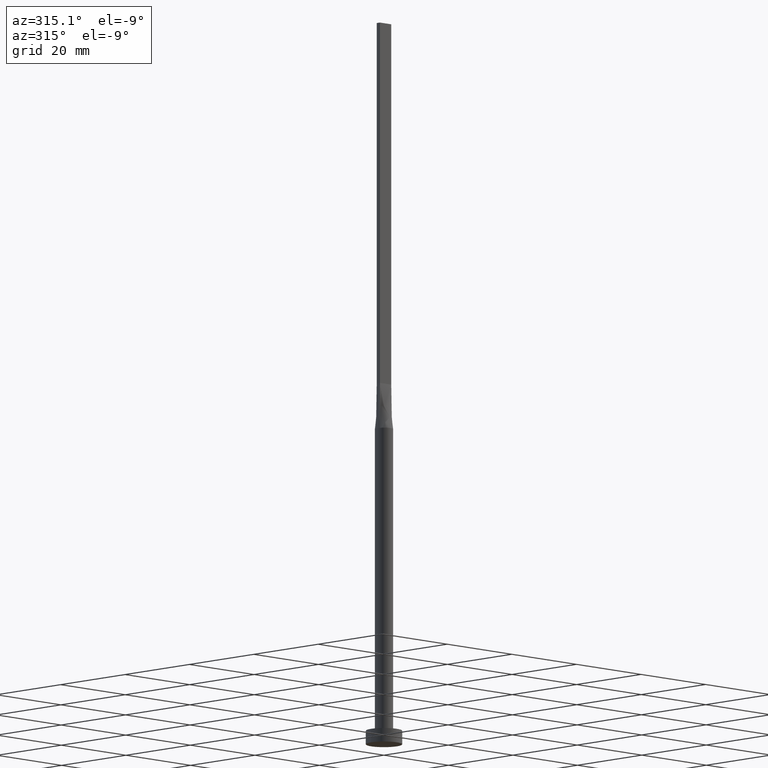
[diagram: clean part render]
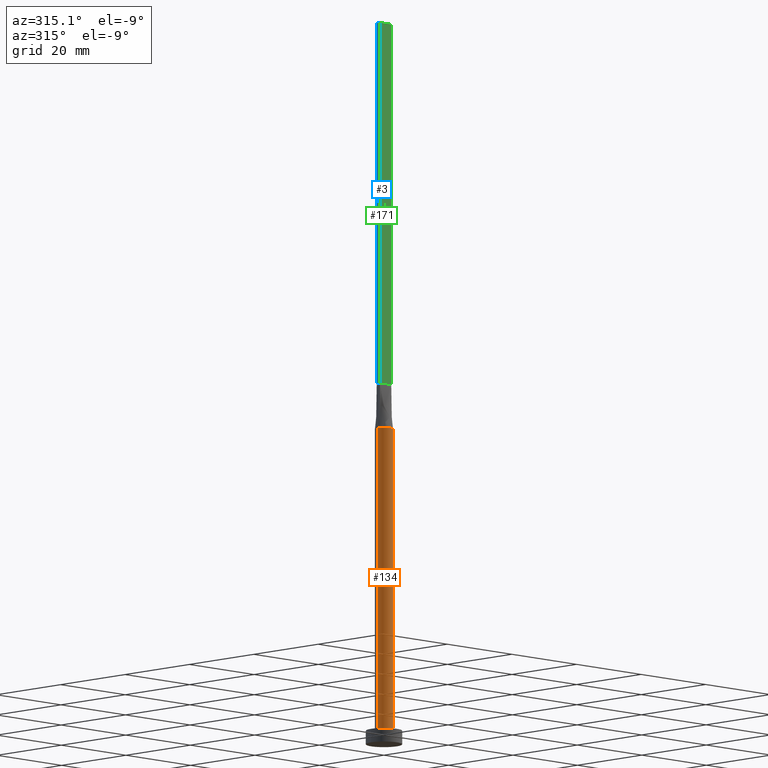
[diagram: same view with three faces highlighted in distinct colors, each labeled with its STEP entity id]
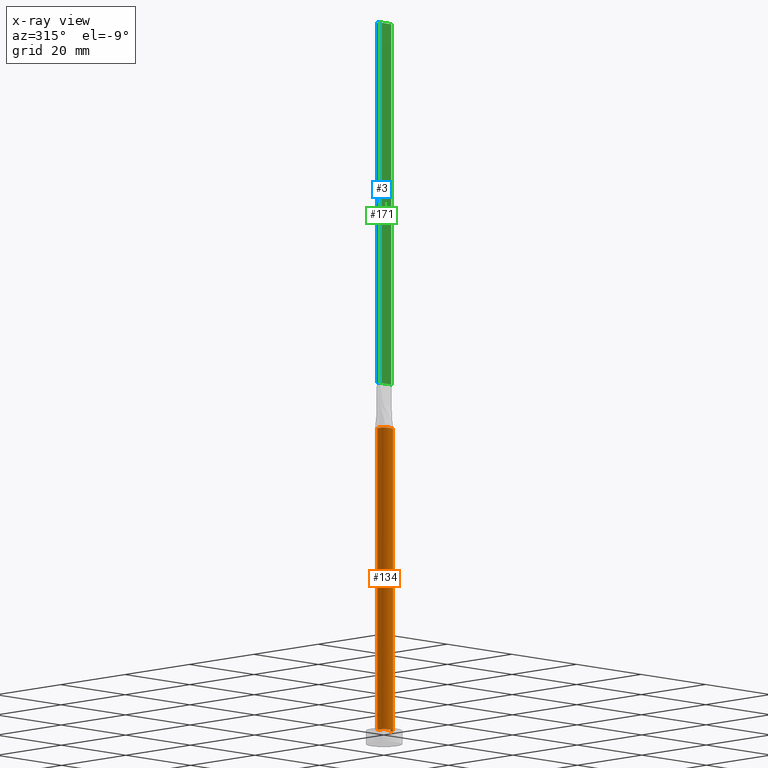
[diagram: x-ray of the same camera — body ghosted, the three highlighted faces saturated]
A machine part, auxiliary view with three faces highlighted in distinct colors.
The next image is the same camera in x-ray (body ghosted, the three faces saturated) — at least one of them is partly hidden behind the body in this view.
Their STEP definitions:

[orange] entity #134 — the highlighted cylindrical surface (edge-blend (fillet) strip) has radius 2 mm, axis along (-0, -0, -1).
#24 = CIRCLE ( 'NONE', #213, 2.000000000000000000 ) ;
#34 = VECTOR ( 'NONE', #475, 1000.000000000000000 ) ;
#50 = CIRCLE ( 'NONE', #455, 2.000000000000000000 ) ;
#57 = AXIS2_PLACEMENT_3D ( 'NONE', #157, #77, #301 ) ;
#71 = DIRECTION ( 'NONE',  ( 1.000000000000000000, 0.000000000000000000, 0.000000000000000000 ) ) ;
#72 = VERTEX_POINT ( 'NONE', #517 ) ;
#76 = ORIENTED_EDGE ( 'NONE', *, *, #358, .T. ) ;
#77 = DIRECTION ( 'NONE',  ( 0.000000000000000000, 0.000000000000000000, 1.000000000000000000 ) ) ;
#99 = DIRECTION ( 'NONE',  ( 1.000000000000000000, 0.000000000000000000, 0.000000000000000000 ) ) ;
#115 = VERTEX_POINT ( 'NONE', #166 ) ;
#123 = AXIS2_PLACEMENT_3D ( 'NONE', #214, #581, #170 ) ;
#134 = ADVANCED_FACE ( 'NONE', ( #351 ), #529, .T. ) ;
#146 = EDGE_LOOP ( 'NONE', ( #425, #200, #211, #393, #76, #478 ) ) ;
#156 = VERTEX_POINT ( 'NONE', #355 ) ;
#157 = CARTESIAN_POINT ( 'NONE',  ( 0.000000000000000000, 0.000000000000000000, 70.00000000000000000 ) ) ;
#163 = EDGE_CURVE ( 'NONE', #249, #433, #534, .T. ) ;
#166 = CARTESIAN_POINT ( 'NONE',  ( 1.923186205402444449, -0.5494823831763672173, 70.00000000000000000 ) ) ;
#170 = DIRECTION ( 'NONE',  ( -1.000000000000000000, 0.000000000000000000, 0.000000000000000000 ) ) ;
#176 = DIRECTION ( 'NONE',  ( -0.000000000000000000, -0.000000000000000000, -1.000000000000000000 ) ) ;
#192 = LINE ( 'NONE', #280, #34 ) ;
#194 = AXIS2_PLACEMENT_3D ( 'NONE', #245, #427, #71 ) ;
#200 = ORIENTED_EDGE ( 'NONE', *, *, #429, .F. ) ;
#202 = CARTESIAN_POINT ( 'NONE',  ( 2.000000000000000000, 2.449293598294706414E-16, 3.000000000000000000 ) ) ;
#204 = DIRECTION ( 'NONE',  ( 1.000000000000000000, 0.000000000000000000, 0.000000000000000000 ) ) ;
#211 = ORIENTED_EDGE ( 'NONE', *, *, #408, .F. ) ;
#213 = AXIS2_PLACEMENT_3D ( 'NONE', #481, #251, #204 ) ;
#214 = CARTESIAN_POINT ( 'NONE',  ( 0.000000000000000000, 0.000000000000000000, 70.00000000000000000 ) ) ;
#244 = VERTEX_POINT ( 'NONE', #559 ) ;
#245 = CARTESIAN_POINT ( 'NONE',  ( 0.000000000000000000, 0.000000000000000000, 70.00000000000000000 ) ) ;
#249 = VERTEX_POINT ( 'NONE', #471 ) ;
#251 = DIRECTION ( 'NONE',  ( 0.000000000000000000, 0.000000000000000000, 1.000000000000000000 ) ) ;
#280 = CARTESIAN_POINT ( 'NONE',  ( -2.000000000000000000, 0.000000000000000000, 70.00000000000000000 ) ) ;
#301 = DIRECTION ( 'NONE',  ( 1.000000000000000000, 3.552713678800500929E-15, 0.000000000000000000 ) ) ;
#307 = CIRCLE ( 'NONE', #57, 2.000000000000000000 ) ;
#325 = CARTESIAN_POINT ( 'NONE',  ( 0.000000000000000000, 0.000000000000000000, 3.000000000000000000 ) ) ;
#351 = FACE_OUTER_BOUND ( 'NONE', #146, .T. ) ;
#352 = EDGE_CURVE ( 'NONE', #72, #433, #50, .T. ) ;
#355 = CARTESIAN_POINT ( 'NONE',  ( -2.000000000000000000, 8.710755549421510381E-17, 70.00000000000000000 ) ) ;
#358 = EDGE_CURVE ( 'NONE', #156, #72, #192, .T. ) ;
#360 = CARTESIAN_POINT ( 'NONE',  ( 2.000000000000000000, 2.449293598294706414E-16, 70.00000000000000000 ) ) ;
#393 = ORIENTED_EDGE ( 'NONE', *, *, #484, .F. ) ;
#408 = EDGE_CURVE ( 'NONE', #244, #115, #568, .T. ) ;
#425 = ORIENTED_EDGE ( 'NONE', *, *, #163, .F. ) ;
#427 = DIRECTION ( 'NONE',  ( 0.000000000000000000, 0.000000000000000000, 1.000000000000000000 ) ) ;
#429 = EDGE_CURVE ( 'NONE', #115, #249, #307, .T. ) ;
#433 = VERTEX_POINT ( 'NONE', #202 ) ;
#455 = AXIS2_PLACEMENT_3D ( 'NONE', #325, #465, #99 ) ;
#465 = DIRECTION ( 'NONE',  ( 0.000000000000000000, 0.000000000000000000, 1.000000000000000000 ) ) ;
#467 = VECTOR ( 'NONE', #176, 1000.000000000000000 ) ;
#471 = CARTESIAN_POINT ( 'NONE',  ( 2.000000000000000000, 2.759698982225367658E-17, 70.00000000000000000 ) ) ;
#475 = DIRECTION ( 'NONE',  ( -0.000000000000000000, -0.000000000000000000, -1.000000000000000000 ) ) ;
#478 = ORIENTED_EDGE ( 'NONE', *, *, #352, .T. ) ;
#481 = CARTESIAN_POINT ( 'NONE',  ( 0.000000000000000000, 0.000000000000000000, 70.00000000000000000 ) ) ;
#484 = EDGE_CURVE ( 'NONE', #156, #244, #24, .T. ) ;
#517 = CARTESIAN_POINT ( 'NONE',  ( -2.000000000000000000, 0.000000000000000000, 3.000000000000000000 ) ) ;
#529 = CYLINDRICAL_SURFACE ( 'NONE', #123, 2.000000000000000000 ) ;
#534 = LINE ( 'NONE', #360, #467 ) ;
#559 = CARTESIAN_POINT ( 'NONE',  ( -1.923161340940673369, -0.5494751859438878894, 70.00000000000000000 ) ) ;
#568 = CIRCLE ( 'NONE', #194, 2.000000000000000000 ) ;
#581 = DIRECTION ( 'NONE',  ( -0.000000000000000000, -0.000000000000000000, -1.000000000000000000 ) ) ;

[blue] entity #3 — the highlighted planar face has unit normal (1, -0, 0).
#3 = ADVANCED_FACE ( 'NONE', ( #276 ), #285, .F. ) ;
#32 = DIRECTION ( 'NONE',  ( -2.168404344971009361E-16, -1.000000000000000000, 0.000000000000000000 ) ) ;
#56 = DIRECTION ( 'NONE',  ( 2.168404344971009361E-16, 1.000000000000000000, 0.000000000000000000 ) ) ;
#60 = CARTESIAN_POINT ( 'NONE',  ( -1.749999999999999778, 0.5000000000000002220, 160.0000000000000000 ) ) ;
#63 = ORIENTED_EDGE ( 'NONE', *, *, #492, .F. ) ;
#74 = CARTESIAN_POINT ( 'NONE',  ( -1.750000000000000000, -0.4999999999999995559, 160.0000000000000000 ) ) ;
#85 = VECTOR ( 'NONE', #133, 1000.000000000000000 ) ;
#92 = DIRECTION ( 'NONE',  ( -0.000000000000000000, -0.000000000000000000, -1.000000000000000000 ) ) ;
#117 = CARTESIAN_POINT ( 'NONE',  ( -1.750000000000000000, -0.4999999999999995559, 160.0000000000000000 ) ) ;
#133 = DIRECTION ( 'NONE',  ( -2.168404344971009361E-16, -1.000000000000000000, 0.000000000000000000 ) ) ;
#137 = AXIS2_PLACEMENT_3D ( 'NONE', #60, #418, #56 ) ;
#147 = EDGE_LOOP ( 'NONE', ( #574, #63, #349, #323 ) ) ;
#180 = LINE ( 'NONE', #312, #85 ) ;
#254 = CARTESIAN_POINT ( 'NONE',  ( -1.749999999999999778, 0.5000000000000002220, 160.0000000000000000 ) ) ;
#271 = VECTOR ( 'NONE', #92, 1000.000000000000000 ) ;
#276 = FACE_OUTER_BOUND ( 'NONE', #147, .T. ) ;
#285 = PLANE ( 'NONE',  #137 ) ;
#294 = CARTESIAN_POINT ( 'NONE',  ( -1.749999999999999778, 0.5000000000000002220, 80.00000000000000000 ) ) ;
#296 = VERTEX_POINT ( 'NONE', #329 ) ;
#297 = DIRECTION ( 'NONE',  ( -0.000000000000000000, -0.000000000000000000, -1.000000000000000000 ) ) ;
#312 = CARTESIAN_POINT ( 'NONE',  ( -1.749999999999999778, 0.5000000000000002220, 160.0000000000000000 ) ) ;
#323 = ORIENTED_EDGE ( 'NONE', *, *, #539, .T. ) ;
#329 = CARTESIAN_POINT ( 'NONE',  ( -1.749999999999999778, 0.5000000000000002220, 80.00000000000000000 ) ) ;
#349 = ORIENTED_EDGE ( 'NONE', *, *, #580, .F. ) ;
#350 = CARTESIAN_POINT ( 'NONE',  ( -1.750000000000000000, -0.4999999999999995559, 80.00000000000000000 ) ) ;
#353 = VECTOR ( 'NONE', #297, 1000.000000000000000 ) ;
#369 = CARTESIAN_POINT ( 'NONE',  ( -1.749999999999999778, 0.5000000000000002220, 160.0000000000000000 ) ) ;
#391 = LINE ( 'NONE', #117, #353 ) ;
#418 = DIRECTION ( 'NONE',  ( 1.000000000000000000, -2.168404344971009361E-16, 0.000000000000000000 ) ) ;
#434 = LINE ( 'NONE', #294, #530 ) ;
#457 = EDGE_CURVE ( 'NONE', #296, #464, #434, .T. ) ;
#464 = VERTEX_POINT ( 'NONE', #350 ) ;
#472 = VERTEX_POINT ( 'NONE', #254 ) ;
#483 = VERTEX_POINT ( 'NONE', #74 ) ;
#492 = EDGE_CURVE ( 'NONE', #483, #464, #391, .T. ) ;
#505 = LINE ( 'NONE', #369, #271 ) ;
#530 = VECTOR ( 'NONE', #32, 1000.000000000000000 ) ;
#539 = EDGE_CURVE ( 'NONE', #472, #296, #505, .T. ) ;
#574 = ORIENTED_EDGE ( 'NONE', *, *, #457, .T. ) ;
#580 = EDGE_CURVE ( 'NONE', #472, #483, #180, .T. ) ;

[green] entity #171 — the highlighted planar face has unit normal (0, 1, -0).
#16 = CARTESIAN_POINT ( 'NONE',  ( 1.750000000000000000, -0.4999999999999997780, 160.0000000000000000 ) ) ;
#27 = LINE ( 'NONE', #16, #269 ) ;
#74 = CARTESIAN_POINT ( 'NONE',  ( -1.750000000000000000, -0.4999999999999995559, 160.0000000000000000 ) ) ;
#97 = DIRECTION ( 'NONE',  ( 1.000000000000000000, -6.195440985631454085E-17, 0.000000000000000000 ) ) ;
#117 = CARTESIAN_POINT ( 'NONE',  ( -1.750000000000000000, -0.4999999999999995559, 160.0000000000000000 ) ) ;
#127 = CARTESIAN_POINT ( 'NONE',  ( -1.750000000000000000, -0.4999999999999995559, 80.00000000000000000 ) ) ;
#132 = DIRECTION ( 'NONE',  ( 6.195440985631454085E-17, 1.000000000000000000, -0.000000000000000000 ) ) ;
#171 = ADVANCED_FACE ( 'NONE', ( #179 ), #535, .F. ) ;
#179 = FACE_OUTER_BOUND ( 'NONE', #247, .T. ) ;
#181 = ORIENTED_EDGE ( 'NONE', *, *, #492, .T. ) ;
#198 = DIRECTION ( 'NONE',  ( -0.000000000000000000, -0.000000000000000000, -1.000000000000000000 ) ) ;
#241 = CARTESIAN_POINT ( 'NONE',  ( 1.750000000000000000, -0.4999999999999997780, 80.00000000000000000 ) ) ;
#247 = EDGE_LOOP ( 'NONE', ( #390, #328, #402, #181 ) ) ;
#269 = VECTOR ( 'NONE', #198, 1000.000000000000000 ) ;
#297 = DIRECTION ( 'NONE',  ( -0.000000000000000000, -0.000000000000000000, -1.000000000000000000 ) ) ;
#300 = VERTEX_POINT ( 'NONE', #241 ) ;
#313 = DIRECTION ( 'NONE',  ( -1.000000000000000000, 6.195440985631454085E-17, 0.000000000000000000 ) ) ;
#328 = ORIENTED_EDGE ( 'NONE', *, *, #416, .F. ) ;
#350 = CARTESIAN_POINT ( 'NONE',  ( -1.750000000000000000, -0.4999999999999995559, 80.00000000000000000 ) ) ;
#353 = VECTOR ( 'NONE', #297, 1000.000000000000000 ) ;
#368 = CARTESIAN_POINT ( 'NONE',  ( -1.750000000000000000, -0.4999999999999995559, 160.0000000000000000 ) ) ;
#371 = LINE ( 'NONE', #127, #447 ) ;
#390 = ORIENTED_EDGE ( 'NONE', *, *, #572, .T. ) ;
#391 = LINE ( 'NONE', #117, #353 ) ;
#402 = ORIENTED_EDGE ( 'NONE', *, *, #440, .F. ) ;
#416 = EDGE_CURVE ( 'NONE', #524, #300, #27, .T. ) ;
#440 = EDGE_CURVE ( 'NONE', #483, #524, #570, .T. ) ;
#447 = VECTOR ( 'NONE', #97, 1000.000000000000000 ) ;
#462 = CARTESIAN_POINT ( 'NONE',  ( 1.750000000000000000, -0.4999999999999997780, 160.0000000000000000 ) ) ;
#464 = VERTEX_POINT ( 'NONE', #350 ) ;
#483 = VERTEX_POINT ( 'NONE', #74 ) ;
#492 = EDGE_CURVE ( 'NONE', #483, #464, #391, .T. ) ;
#514 = VECTOR ( 'NONE', #528, 1000.000000000000000 ) ;
#523 = CARTESIAN_POINT ( 'NONE',  ( -1.750000000000000000, -0.4999999999999995559, 160.0000000000000000 ) ) ;
#524 = VERTEX_POINT ( 'NONE', #462 ) ;
#528 = DIRECTION ( 'NONE',  ( 1.000000000000000000, -6.195440985631454085E-17, 0.000000000000000000 ) ) ;
#535 = PLANE ( 'NONE',  #537 ) ;
#537 = AXIS2_PLACEMENT_3D ( 'NONE', #368, #132, #313 ) ;
#570 = LINE ( 'NONE', #523, #514 ) ;
#572 = EDGE_CURVE ( 'NONE', #464, #300, #371, .T. ) ;